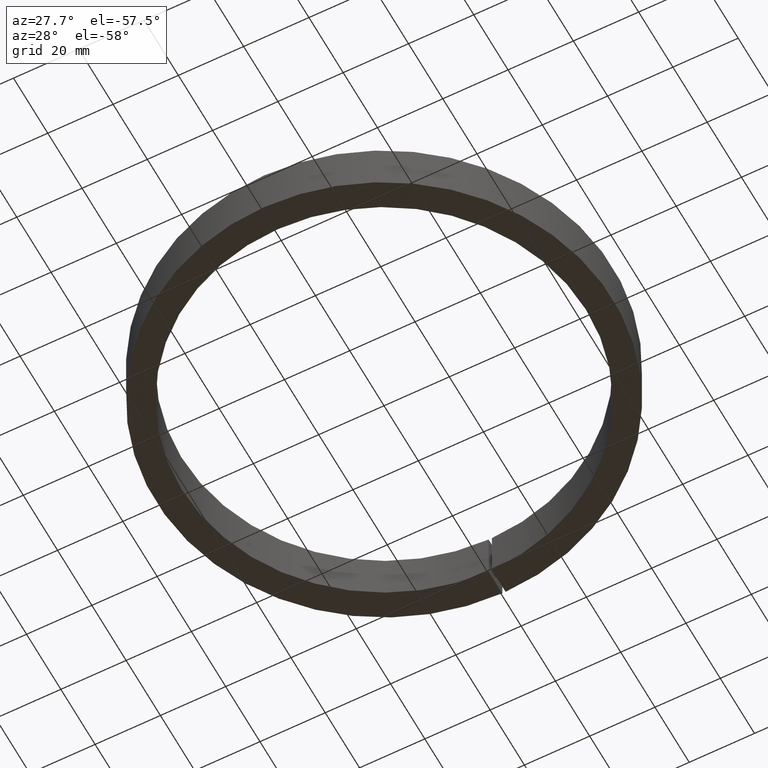
[diagram: clean part render]
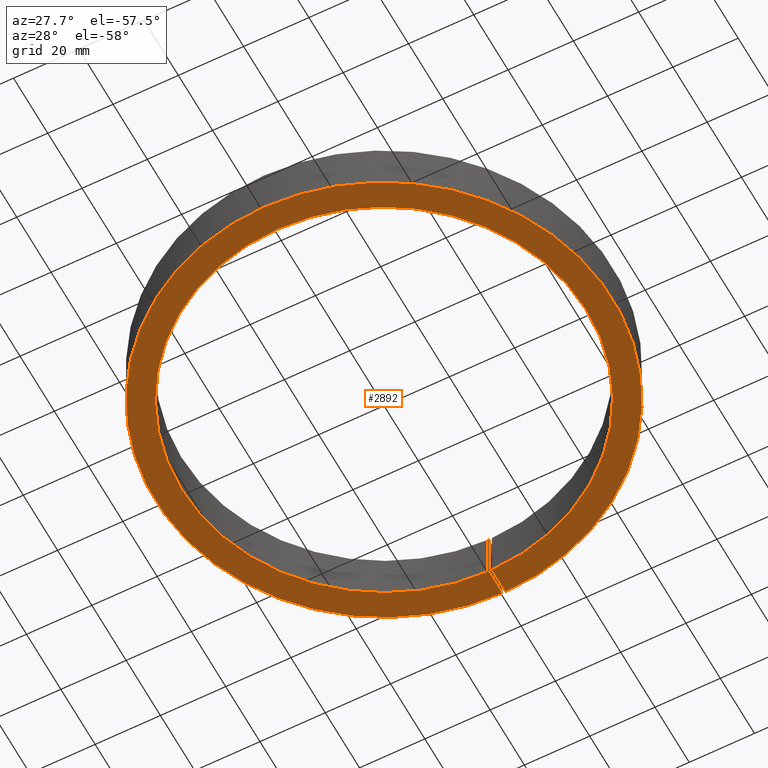
[diagram: same view with one face highlighted and labeled with its STEP entity id]
A machine part, auxiliary view. The second image highlights one B-rep face of the part: STEP entity #2892.
In plain terms, the highlighted planar face has unit normal (0, 0, 1).
Its self-contained STEP definition (entity closure, byte-faithful):
#276 = EDGE_CURVE ( 'NONE', #6739, #1732, #7609, .T. ) ;
#403 = ORIENTED_EDGE ( 'NONE', *, *, #276, .F. ) ;
#702 = AXIS2_PLACEMENT_3D ( 'NONE', #10232, #1395, #4471 ) ;
#777 = CARTESIAN_POINT ( 'NONE',  ( 0.0000000000000000000, -62.00000000000000700, -8.000000000000000000 ) ) ;
#1059 = CARTESIAN_POINT ( 'NONE',  ( -0.5000000000000000000, 61.99798383818622900, -8.000000000000000000 ) ) ;
#1395 = DIRECTION ( 'NONE',  ( -0.0000000000000000000, -0.0000000000000000000, -1.000000000000000000 ) ) ;
#1732 = VERTEX_POINT ( 'NONE', #4523 ) ;
#1748 = DIRECTION ( 'NONE',  ( 0.0000000000000000000, 0.0000000000000000000, 1.000000000000000000 ) ) ;
#2303 = DIRECTION ( 'NONE',  ( 0.0000000000000000000, 1.000000000000000000, -0.0000000000000000000 ) ) ;
#2377 = CARTESIAN_POINT ( 'NONE',  ( 0.5000000000000000000, 0.0000000000000000000, -8.000000000000000000 ) ) ;
#2493 = EDGE_CURVE ( 'NONE', #6637, #1732, #8059, .T. ) ;
#2690 = EDGE_LOOP ( 'NONE', ( #6279, #12161, #12014, #403 ) ) ;
#2715 = DIRECTION ( 'NONE',  ( 1.000000000000000000, 0.0000000000000000000, -0.0000000000000000000 ) ) ;
#2892 = ADVANCED_FACE ( 'NONE', ( #6850 ), #5451, .F. ) ;
#2957 = DIRECTION ( 'NONE',  ( -0.0000000000000000000, -0.0000000000000000000, -1.000000000000000000 ) ) ;
#3248 = AXIS2_PLACEMENT_3D ( 'NONE', #10611, #2957, #5735 ) ;
#3999 = VECTOR ( 'NONE', #2303, 1000.000000000000000 ) ;
#4279 = EDGE_CURVE ( 'NONE', #8201, #6739, #12216, .T. ) ;
#4471 = DIRECTION ( 'NONE',  ( -1.000000000000000000, 0.0000000000000000000, 0.0000000000000000000 ) ) ;
#4523 = CARTESIAN_POINT ( 'NONE',  ( -0.5000000000000000000, 69.99821426293674200, -8.000000000000000000 ) ) ;
#5188 = AXIS2_PLACEMENT_3D ( 'NONE', #777, #1748, #2715 ) ;
#5451 = PLANE ( 'NONE',  #5188 ) ;
#5735 = DIRECTION ( 'NONE',  ( -1.000000000000000000, 0.0000000000000000000, 0.0000000000000000000 ) ) ;
#6279 = ORIENTED_EDGE ( 'NONE', *, *, #4279, .F. ) ;
#6637 = VERTEX_POINT ( 'NONE', #7085 ) ;
#6739 = VERTEX_POINT ( 'NONE', #1059 ) ;
#6850 = FACE_OUTER_BOUND ( 'NONE', #2690, .T. ) ;
#7085 = CARTESIAN_POINT ( 'NONE',  ( 0.5000000000000000000, 69.99821426293674200, -8.000000000000000000 ) ) ;
#7461 = DIRECTION ( 'NONE',  ( 0.0000000000000000000, 1.000000000000000000, -0.0000000000000000000 ) ) ;
#7609 = LINE ( 'NONE', #9540, #12093 ) ;
#7617 = LINE ( 'NONE', #2377, #3999 ) ;
#8059 = CIRCLE ( 'NONE', #3248, 70.00000000000000000 ) ;
#8201 = VERTEX_POINT ( 'NONE', #8246 ) ;
#8246 = CARTESIAN_POINT ( 'NONE',  ( 0.5000000000000000000, 61.99798383818622900, -8.000000000000000000 ) ) ;
#9540 = CARTESIAN_POINT ( 'NONE',  ( -0.5000000000000000000, 0.0000000000000000000, -8.000000000000000000 ) ) ;
#10232 = CARTESIAN_POINT ( 'NONE',  ( 0.0000000000000000000, 0.0000000000000000000, -8.000000000000000000 ) ) ;
#10611 = CARTESIAN_POINT ( 'NONE',  ( 0.0000000000000000000, 0.0000000000000000000, -8.000000000000000000 ) ) ;
#12014 = ORIENTED_EDGE ( 'NONE', *, *, #2493, .T. ) ;
#12093 = VECTOR ( 'NONE', #7461, 1000.000000000000000 ) ;
#12161 = ORIENTED_EDGE ( 'NONE', *, *, #12229, .T. ) ;
#12216 = CIRCLE ( 'NONE', #702, 62.00000000000000700 ) ;
#12229 = EDGE_CURVE ( 'NONE', #8201, #6637, #7617, .T. ) ;